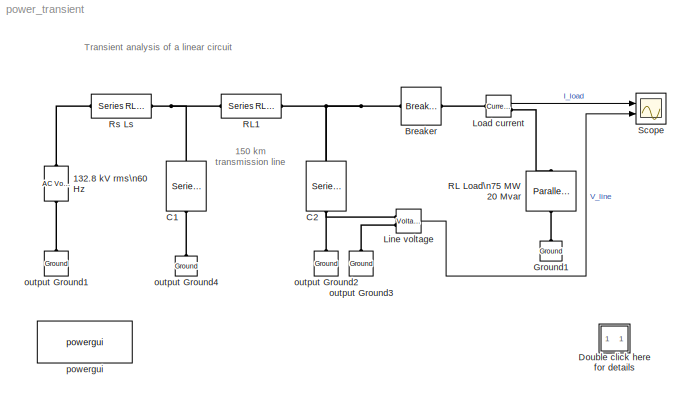
MODEL power_transient
KIND model
BLOCK [Reference] 132.8 kV rms\n60 Hz  REF=powerlib/Electrical\nSources/AC Voltage Source
  Amplitude = 230e3/sqrt(3)*sqrt(2)
  AttributesFormatString = \\n
  Description = source block
  Frequency = 60
  Measurements = None
  Phase = 90
  Ports = [0, 0, 0, 0, 0, 1, 1]
  SampleTime = 0
  ShowPortLabels = on
  SourceBlock = powerlib/Electrical\nSources/AC Voltage Source
  SourceType = AC Voltage Source
BLOCK [Reference] Breaker  REF=powerlib/Elements/Breaker
  AttributesFormatString = \\n
  BreakerResistance = 0.01
  External = off
  InitialState = 1
  Measurements = None
  Ports = [0, 0, 0, 0, 0, 1, 1]
  ShowPortLabels = on
  SnubberCapacitance = 0
  SnubberResistance = inf
  SourceBlock = powerlib/Elements/Breaker
  SourceType = Breaker
  SwitchingTimes = [ 2/60  7/60 ]
BLOCK [Reference] C1  REF=powerlib/Elements/Series RLC Branch
  AttributesFormatString = \\n
  Capacitance = 0.967e-06
  Inductance = 0
  LConnTagsString = __new0
  LeftPortType = p1
  Measurements = None
  PhysicalDomain = powersysdomain
  Ports = [0, 0, 0, 0, 0, 1, 1]
  RConnTagsString = __new0
  Resistance = 0
  RightPortType = p1
  SourceBlock = powerlib/Elements/Series RLC Branch
  SourceType = Series RLC Branch
  SubClassName = unknown
BLOCK [Reference] C2  REF=powerlib/Elements/Series RLC Branch
  AttributesFormatString = \\n
  Capacitance = 0.967e-06
  Inductance = 0
  LConnTagsString = __new0
  LeftPortType = p1
  Measurements = None
  PhysicalDomain = powersysdomain
  Ports = [0, 0, 0, 0, 0, 1, 1]
  RConnTagsString = __new0
  Resistance = 0
  RightPortType = p1
  SourceBlock = powerlib/Elements/Series RLC Branch
  SourceType = Series RLC Branch
  SubClassName = unknown
BLOCK [SubSystem] Double click here for details
  MaskDisplay = disp('?')
  MaskIconFrame = on
  MaskIconOpaque = on
  MaskIconRotate = none
  MaskIconUnits = autoscale
  MinAlgLoopOccurrences = off
  Ports = []
  RTWSystemCode = Auto
  TreatAsAtomicUnit = off
BLOCK [Reference] Ground1  REF=powerlib/Elements/Ground
  AttributesFormatString = \\n
  LConnTagsString = a
  LeftPortType = p1
  PhysicalDomain = powersysdomain
  Ports = [0, 0, 0, 0, 0, 1]
  RightPortType = p1
  SourceBlock = powerlib/Elements/Ground
  SourceType = Ground
  SubClassName = unknown
BLOCK [Reference] Line voltage  REF=powerlib/Measurements/Voltage Measurement
  AttributesFormatString = \\n
  OutputType = Magnitude
  PSBequivalent = 0
  PhasorSimulation = off
  Ports = [0, 1, 0, 0, 0, 2]
  ShowPortLabels = on
  SourceBlock = powerlib/Measurements/Voltage Measurement
  SourceType = Voltage Measurement
  Tag = PoWeRsYsTeMmEaSuReMeNt
BLOCK [Reference] Load current  REF=powerlib/Measurements/Current Measurement
  AttributesFormatString = \\n
  OutputType = Magnitude
  PSBequivalent = 0
  PhasorSimulation = off
  Ports = [0, 1, 0, 0, 0, 1, 1]
  ShowPortLabels = on
  SourceBlock = powerlib/Measurements/Current Measurement
  SourceType = Current Measurement
  Tag = PoWeRsYsTeMmEaSuReMeNt
BLOCK [Reference] RL Load\n75 MW 20 Mvar  REF=powerlib/Elements/Parallel RLC Load
  ActivePower = 75e6
  AttributesFormatString = \\n
  CapacitivePower = 0
  InductivePower = 20e6
  LConnTagsString = a
  LeftPortType = p1
  Measurements = None
  NominalFrequency = 60
  NominalVoltage = 132.8e3
  PhysicalDomain = powersysdomain
  Ports = [0, 0, 0, 0, 0, 1, 1]
  RConnTagsString = __new0
  RightPortType = p1
  SourceBlock = powerlib/Elements/Parallel RLC Load
  SourceType = Parallel RLC Load
  SubClassName = unknown
BLOCK [Reference] RL1  REF=powerlib/Elements/Series RLC Branch
  AttributesFormatString = \\n
  Capacitance = inf
  Inductance = 138e-3
  LConnTagsString = __new0
  LeftPortType = p1
  Measurements = None
  PhysicalDomain = powersysdomain
  Ports = [0, 0, 0, 0, 0, 1, 1]
  RConnTagsString = __new0
  Resistance = 5.2
  RightPortType = p1
  SourceBlock = powerlib/Elements/Series RLC Branch
  SourceType = Series RLC Branch
  SubClassName = unknown
BLOCK [Reference] Rs       Ls  REF=powerlib/Elements/Series RLC Branch
  AttributesFormatString = \\n
  Capacitance = inf
  Inductance = 70.2e-03
  LConnTagsString = __new0
  LeftPortType = p1
  Measurements = None
  PhysicalDomain = powersysdomain
  Ports = [0, 0, 0, 0, 0, 1, 1]
  RConnTagsString = __new0
  Resistance = 2.645
  RightPortType = p1
  SourceBlock = powerlib/Elements/Series RLC Branch
  SourceType = Series RLC Branch
  SubClassName = unknown
BLOCK [Scope] Scope
  DataFormat = Array
  LimitDataPoints = off
  NumInputPorts = 2
  Ports = [2]
  TimeRange = 0.2
  YMax = 1000~400000
  YMin = -1000~-400000
BLOCK [Reference] output Ground1  REF=powerlib/Elements/Ground
  AttributesFormatString = \\n
  LConnTagsString = a
  LeftPortType = p1
  PhysicalDomain = powersysdomain
  Ports = [0, 0, 0, 0, 0, 1]
  RightPortType = p1
  SourceBlock = powerlib/Elements/Ground
  SourceType = Ground
  SubClassName = unknown
BLOCK [Reference] output Ground2  REF=powerlib/Elements/Ground
  AttributesFormatString = \\n
  LConnTagsString = a
  LeftPortType = p1
  PhysicalDomain = powersysdomain
  Ports = [0, 0, 0, 0, 0, 1]
  RightPortType = p1
  SourceBlock = powerlib/Elements/Ground
  SourceType = Ground
  SubClassName = unknown
BLOCK [Reference] output Ground3  REF=powerlib/Elements/Ground
  AttributesFormatString = \\n
  LConnTagsString = a
  LeftPortType = p1
  PhysicalDomain = powersysdomain
  Ports = [0, 0, 0, 0, 0, 1]
  RightPortType = p1
  SourceBlock = powerlib/Elements/Ground
  SourceType = Ground
  SubClassName = unknown
BLOCK [Reference] output Ground4  REF=powerlib/Elements/Ground
  AttributesFormatString = \\n
  LConnTagsString = a
  LeftPortType = p1
  PhysicalDomain = powersysdomain
  Ports = [0, 0, 0, 0, 0, 1]
  RightPortType = p1
  SourceBlock = powerlib/Elements/Ground
  SourceType = Ground
  SubClassName = unknown
BLOCK [Reference] powergui  REF=powerlib/powergui
  DisplayStyle = off
  Frange = logspace(0,3,50)
  FreqAxis = off
  MaxFrequency = 1000
  Ports = []
  Priority = 2
  RmsSteady = 1
  ShowPortLabels = on
  SourceBlock = powerlib/powergui
  SourceType = PSB option menu block
  StartTime = 0.0
  Ts = 0
  Xlog = off
  Ylog = off
  ZoomFFT = on
  cycles = 1
  display = off
  echomessages = on
  frequency = 60
  frequencyindice = 1
  frequencyindicesteady = 1
  fundamental = 60
  methode = off
  save = off
  variable = ZData
ANNOTATION (root): 150 km\ntransmission line
ANNOTATION (root): Transient analysis of a linear circuit
ANNOTATION Double click here for details: 1. Simulation using a continuous solver (ode23tb)
ANNOTATION Double click here for details: 2. Using the Powergui to obtain steady-state phasors and set initial states
ANNOTATION Double click here for details: 3. Discretizing your circuit and simulating at fixed steps
ANNOTATION Double click here for details: 4. Using the phasor simulation method
ANNOTATION Double click here for details: Circuit Description
ANNOTATION Double click here for details: Demonstration
ANNOTATION Double click here for details: H. Le-Huy (Universite Laval, Quebec) and G. Sybille (Hydro-Quebec)
ANNOTATION Double click here for details: Open the Powergui block and select \"Steady State Voltage and Currents\" to measure the steady-state voltage and current phasors.\n \nUsing the Powergui select now \"Initial States Setting\" to obtain the initial state values (voltage across capacitors and current in inductances).\nNow, reset all the initial states to zero by clicking the \"to zero\" button and then \"Apply\" to confirm changes. R...<+154ch>
ANNOTATION Double click here for details: Start the simulation and observe line voltage and load current transients during load switching and note that the simulation starts in steady-state.\nUse the zoom buttons of the oscilloscope to observe the transient voltage at breaker reclosing.
ANNOTATION Double click here for details: The Powergui block can also be used to discretize your circuit and simulate it at fixed steps.\n\nOpen the Powergui. Select \"Discretize electrical model\" and specify a sample time of 50e-6 s. The state-space model will now be discretized\nusing trapezoidal fixed step integration. The precision of results is now imposed by the sample time. Restart the simulation and compare simultion results\nwit...<+133ch>
ANNOTATION Double click here for details: This circuit is a simplified model of a 230 kV three-phase power system. Only one phase of the transmission system is represented.\nThe equivalent source is modeled by a voltage source (230 kV rms/sqrt(3) or 187.8 kV peak, 60 Hz) in series with its internal impedance (Rs Ls)\ncorresponding to a 3-phase 2000 MVA short circuit level and X/R = 10. (X = 230e3^2/2000e6 = 26.45 ohms or L = 0.0702 H, R =...<+642ch>
ANNOTATION Double click here for details: This demonstration illustrates steady-state and transient simulation of a linear circuit and use of the Powergui block
ANNOTATION Double click here for details: You will now use a third simulation technique. The \"phasor simulation\" method consists to replace the circuit state-space model by a set of algebraic\nequations evaluated at a fixed frequency and to replace sinusoidal voltage and current sources by phasors (complex numbers). This method allows a fast\ncomputation of voltage and current phasors at a selected frequency, disregarding fast transient...<+592ch>
LINE Line voltage:1 -> Scope:2
LINE Load current:1 -> Scope:1
PLINE 132.8 kV rms\n60 Hz:LConn1 -- output Ground1:LConn1
PLINE 132.8 kV rms\n60 Hz:RConn1 -- Rs       Ls:LConn1
PNET net1: Breaker:LConn1 -- C2:RConn1 -- Line voltage:LConn1 -- RL1:RConn1
PLINE Breaker:RConn1 -- Load current:LConn1
PLINE C1:LConn1 -- output Ground4:LConn1
PNET net2: C1:RConn1 -- RL1:LConn1 -- Rs       Ls:RConn1
PLINE C2:LConn1 -- output Ground2:LConn1
PLINE Ground1:LConn1 -- RL Load\n75 MW 20 Mvar:RConn1
PLINE Line voltage:LConn2 -- output Ground3:LConn1
PLINE Load current:RConn1 -- RL Load\n75 MW 20 Mvar:LConn1
note: PNET lines group multi-terminal physical nets as a canonical sorted terminal list (undirected conserving connections); 2-terminal nets keep the pairwise PLINE form
